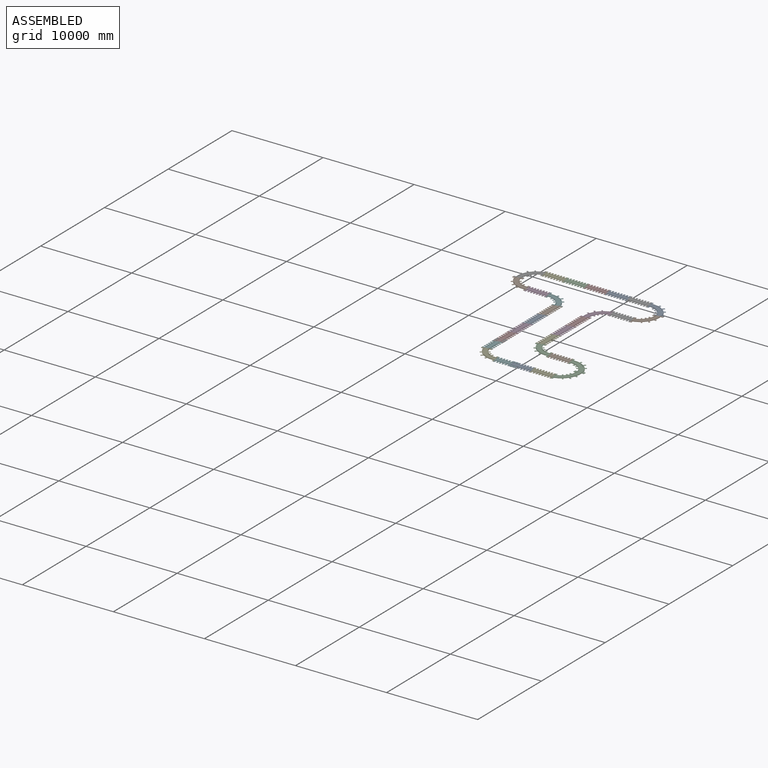
[diagram: assembled view]
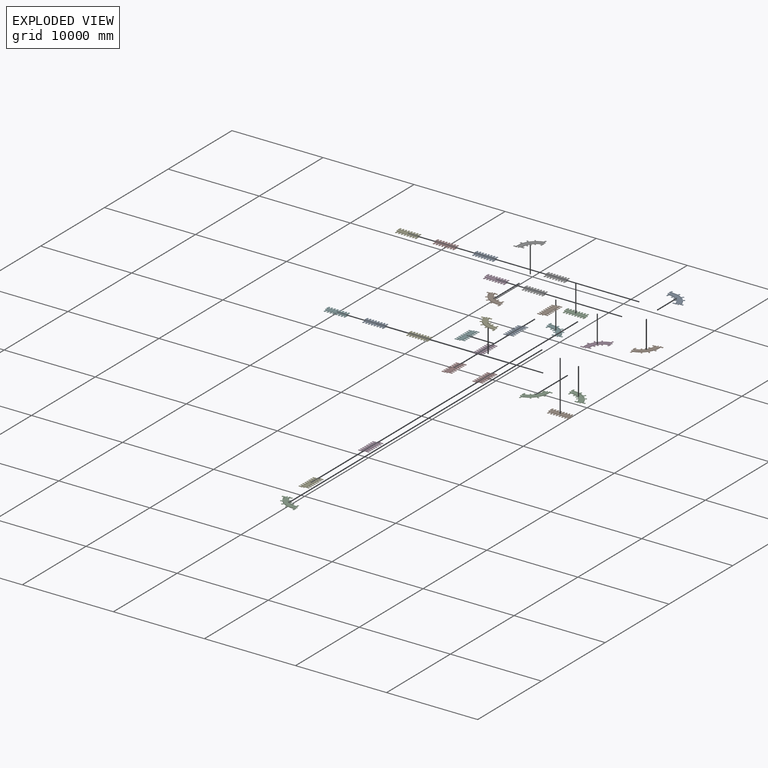
[diagram: exploded view]
GUIDED TOUR — MATED ASSEMBLY (Onshape document 573f48ffe4b0b9290a33c48c, AutoMate assembly 573f48ffe4b0b9290a33c48c_688db4f227d9a4fdee3f4b20_6b57aa259356919dd3994f17_default)

This assembly has 29 components, labeled P0..P28 below (a component is one placed occurrence of a part; the same part can appear more than once), held together by 26 mates. A mate is a constraint between two components; its type names the relative motion it leaves free:
  FASTENED — locks the two components together rigidly (no relative motion).
Axis/direction vectors are unit vectors and 'through' points are millimeter coordinates, both in the assembly's world frame.

MATES
  1. FASTENED "Fastened 2": P14 <-> P16, direction (1.000, 0.000, 0.000) through (-565.29, 798.56, -175.38) mm
  2. FASTENED "Fastened 21": P26 <-> P18, direction (0.000, 1.000, 0.000) through (2366.49, -14536.88, -175.38) mm
  3. FASTENED "Fastened 20": P7 <-> P11, direction (0.000, 1.000, 0.000) through (-7423.10, -11065.11, -175.38) mm
  4. FASTENED "Fastened 14": P17 <-> P6, direction (0.000, 1.000, 0.000) through (-13740.69, -1180.79, -175.38) mm
  5. FASTENED "Fastened 19": P11 <-> P8, direction (0.000, 1.000, 0.000) through (-7423.10, -8750.52, -175.38) mm
  6. FASTENED "Fastened 17": P25 <-> P5, direction (0.000, 1.000, 0.000) through (-7423.10, -4121.34, -175.38) mm
  7. FASTENED "Fastened 16": P5 <-> P3, direction (-1.000, 0.000, 0.000) through (-9292.44, -2673.21, -175.38) mm
  8. FASTENED "Fastened 25": P0 <-> P12, direction (1.000, 0.000, 0.000) through (-1286.22, -16560.52, -175.38) mm
  9. FASTENED "Fastened 7": P4 <-> P27, direction (0.000, 1.000, 0.000) through (-3951.09, -9281.74, -175.38) mm
  10. FASTENED "Fastened 5": P15 <-> P19, direction (0.000, 1.000, 0.000) through (-3951.09, -4652.56, -175.38) mm
  11. FASTENED "Fastened 11": P10 <-> P23, direction (1.000, 0.000, 0.000) through (-7509.07, 798.56, -175.38) mm
  12. FASTENED "Fastened 18": P8 <-> P25, direction (0.000, 1.000, 0.000) through (-7423.10, -6435.93, -175.38) mm
  13. FASTENED "Fastened 13": P6 <-> P20, direction (1.000, 0.000, 0.000) through (-12138.26, 798.56, -175.38) mm
  14. FASTENED "Fastened 1": P1 <-> P16, direction (0.000, 1.000, 0.000) through (1414.05, -803.87, -175.38) mm
  15. FASTENED "Fastened 15": P3 <-> P17, direction (-1.000, 0.000, 0.000) through (-11607.03, -2673.21, -175.38) mm
  16. FASTENED "Fastened 22": P2 <-> P4, direction (0.000, 1.000, 0.000) through (-3951.09, -11596.33, -175.38) mm
  17. FASTENED "Fastened 8": P18 <-> P9, direction (-1.000, 0.000, 0.000) through (342.84, -13198.76, -175.38) mm
  18. FASTENED "Fastened 4": P19 <-> P22, direction (1.000, 0.000, 0.000) through (-2348.66, -2673.21, -175.38) mm
  19. FASTENED "Fastened 3": P22 <-> P1, direction (1.000, 0.000, 0.000) through (-34.07, -2673.21, -175.38) mm
  20. FASTENED "Fastened 10": P23 <-> P24, direction (1.000, 0.000, 0.000) through (-5194.48, 798.56, -175.38) mm
  21. FASTENED "Fastened 12": P20 <-> P10, direction (1.000, 0.000, 0.000) through (-9823.66, 798.56, -175.38) mm
  22. FASTENED "Fastened 6": P27 <-> P15, direction (0.000, 1.000, 0.000) through (-3951.09, -6967.15, -175.38) mm
  23. FASTENED "Fastened 24": P9 <-> P2, direction (-1.000, 0.000, 0.000) through (-1971.75, -13198.76, -175.38) mm
  24. FASTENED "Fastened 23": P12 <-> P26, direction (1.000, 0.000, 0.000) through (1028.37, -16560.52, -175.38) mm
  25. FASTENED "Fastened 26": P13 <-> P28, direction (0.000, -1.000, 0.000) through (-7423.10, -15091.32, -175.38) mm
  26. FASTENED "Fastened 9": P24 <-> P14, direction (1.000, 0.000, 0.000) through (-2879.89, 798.56, -175.38) mm

ASSEMBLY ORDER
  1. P25 — the base component [order verified]
  2. P8 [order verified]
  3. P11 [order verified]
  4. P7 [order verified]
  5. P13 [order verified]
  6. P27 [order verified]
  7. P22 [order verified]
  8. P4 [order verified]
  9. P15 [order verified]
  10. P2 [order verified]
  11. P3 [order verified]
  12. P19 [order verified]
  13. P5 [order verified]
  14. P18 [order verified]
  15. P14 [order verified]
  16. P12 [order verified]
  17. P9 [order verified]
  18. P17 [order verified]
  19. P1 [order verified]
  20. P26 [order verified]
  21. P0 [order verified]
  22. P24 [order verified]
  23. P23 [order verified]
  24. P20 [order verified]
  25. P10 [order verified]
  26. P6 [order verified]
  27. P16 [order verified]
  28. P28 [order verified]
  29. P21 [order verified]
Order-tag legend:
  [order verified] — this step's position reverses a verified removal order: the component was checked to insert without passing through the ones already placed.

Of the 29 components, 29 carry the full construction recipe — the FeatureScript program that regenerates the part's solid from scratch; the rest are supplied as boundary geometry only.
Because this assembly has more than 12 components, the tour below covers the 12 most significant ones individually (every recipe-attached component first, then the largest by part volume), in assembly order; the remaining 17 are summarized together in a grouped section at the end.
Each toured component is shown spotlighted twice — in the assembled view, then in the exploded view, where a leader line traces a displaced component back to its assembled socket (saturated green if recipe-attached, orange if geometry-only; every other component desaturated gray) — followed by its recipe or geometry summary and the mates that hold it.
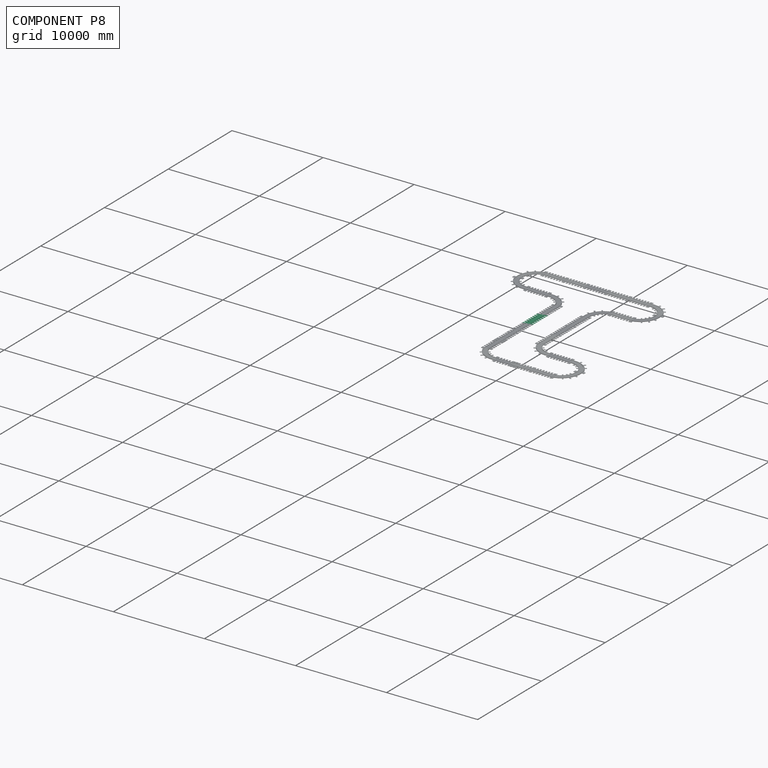
[diagram: component P8 — assembled]
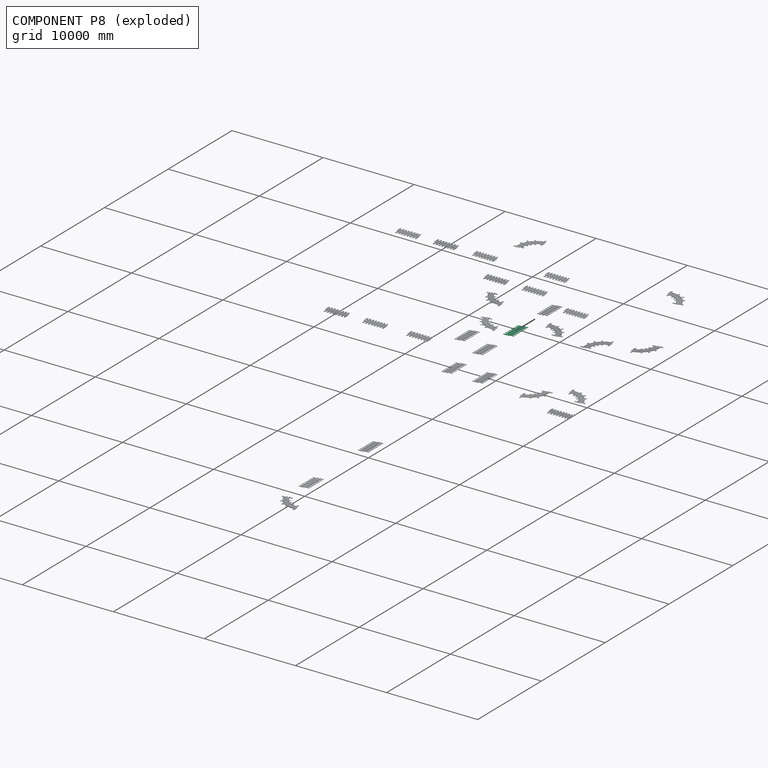
[diagram: component P8 — exploded]
COMPONENT P8 — same part as P0 (CADFS 00159531); its construction recipe is shown at P0.
Held by: FASTENED mate "Fastened 19" to P11; FASTENED mate "Fastened 18" to P25.
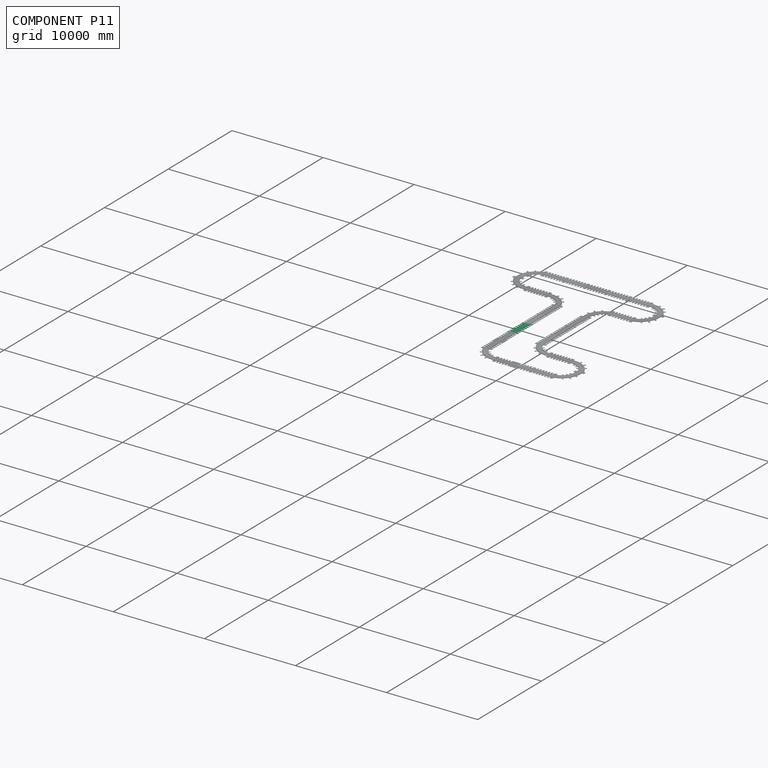
[diagram: component P11 — assembled]
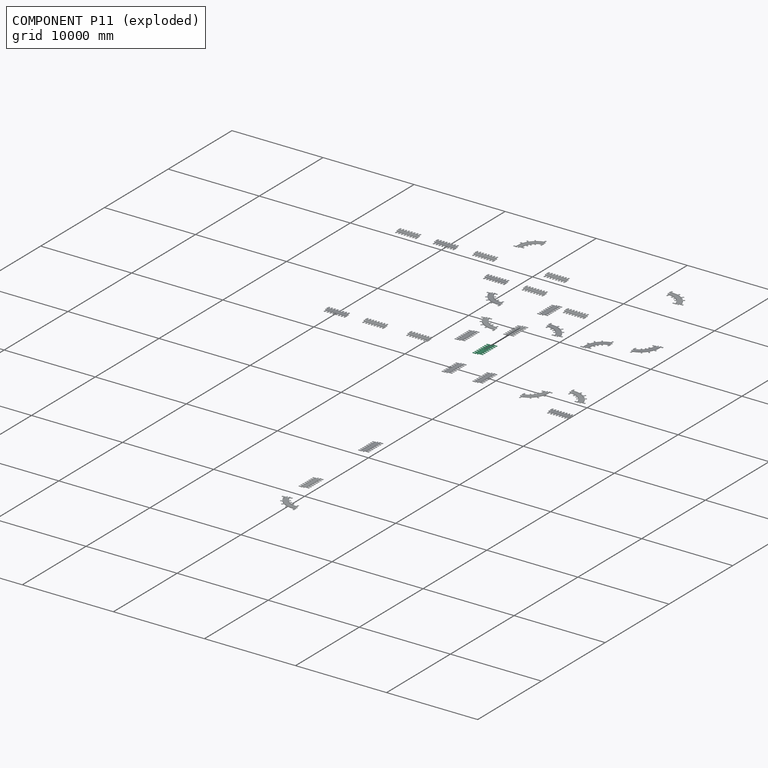
[diagram: component P11 — exploded]
COMPONENT P11 — same part as P0 (CADFS 00159531); its construction recipe is shown at P0.
Held by: FASTENED mate "Fastened 20" to P7; FASTENED mate "Fastened 19" to P8.
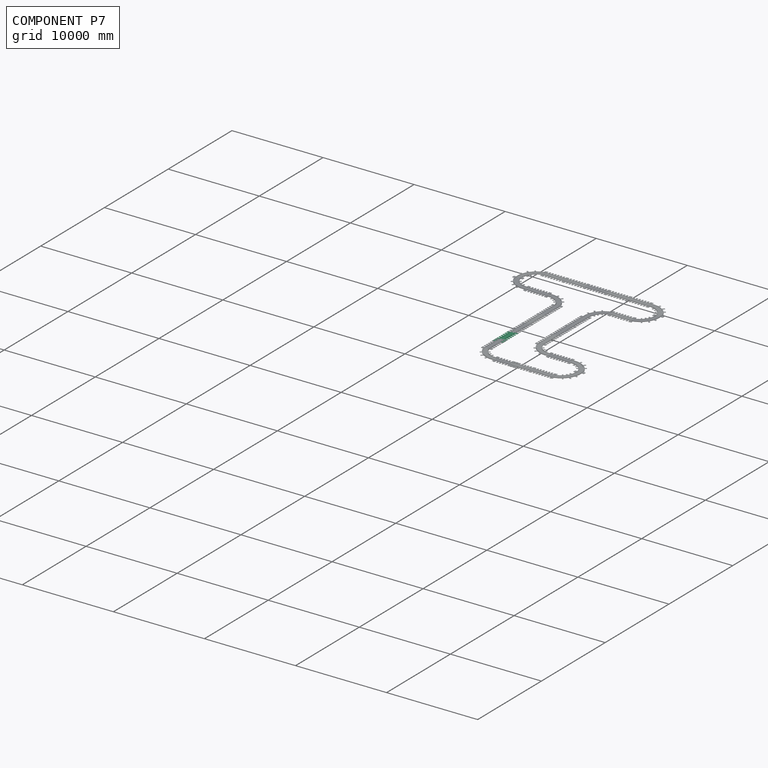
[diagram: component P7 — assembled]
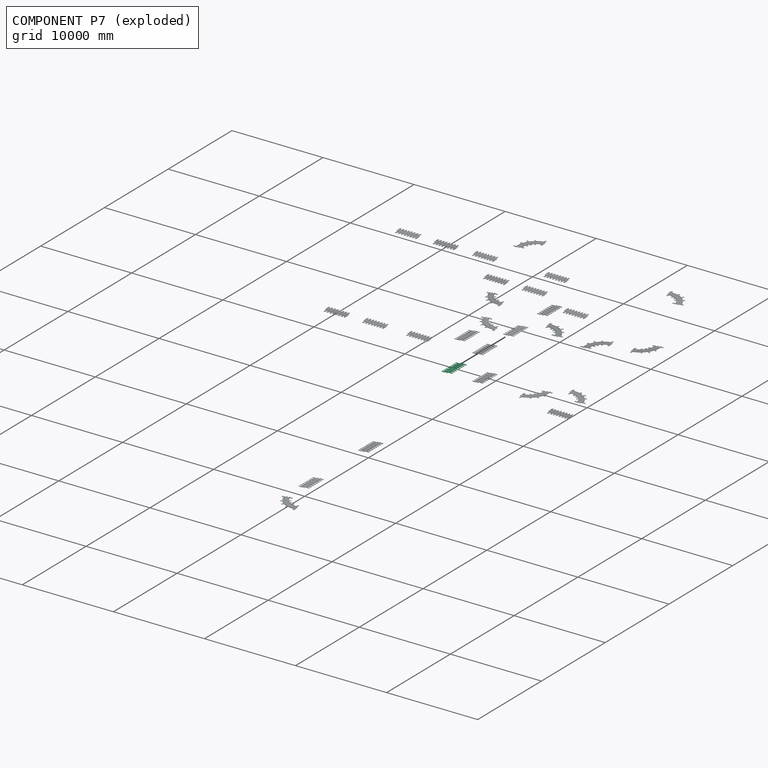
[diagram: component P7 — exploded]
COMPONENT P7 — same part as P0 (CADFS 00159531); its construction recipe is shown at P0.
Held by: FASTENED mate "Fastened 20" to P11.
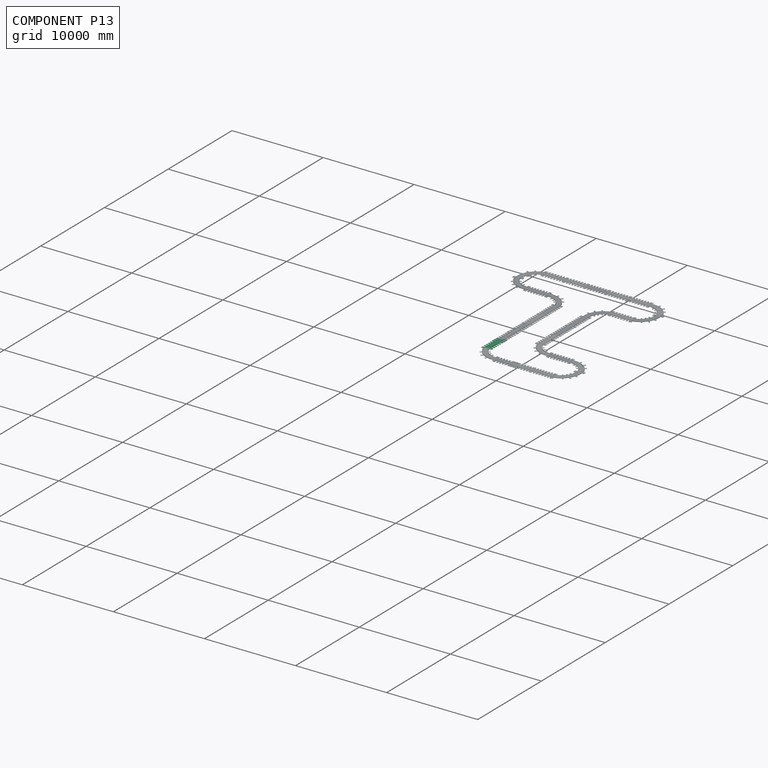
[diagram: component P13 — assembled]
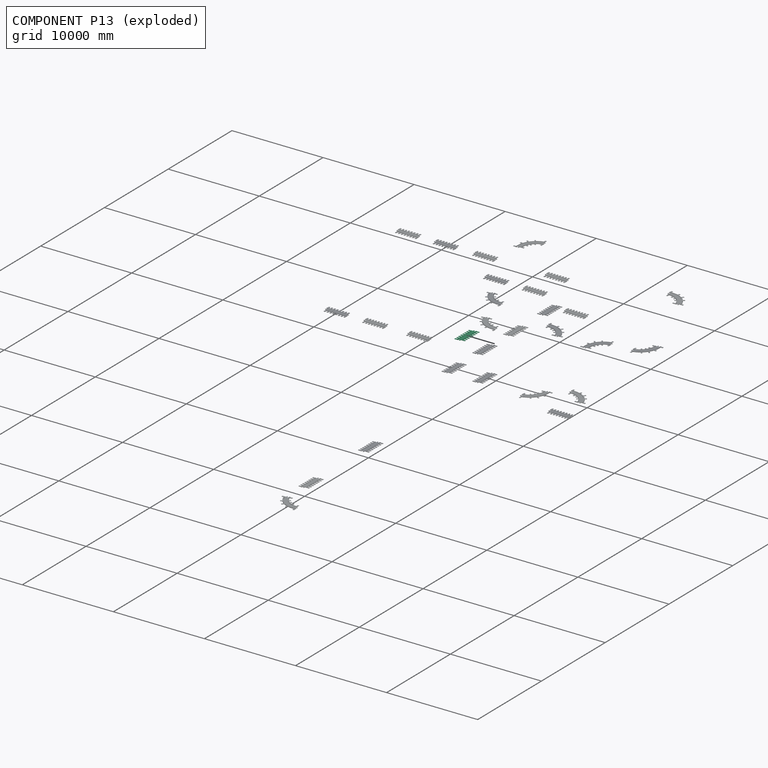
[diagram: component P13 — exploded]
COMPONENT P13 — same part as P0 (CADFS 00159531); its construction recipe is shown at P0.
Held by: FASTENED mate "Fastened 26" to P28.
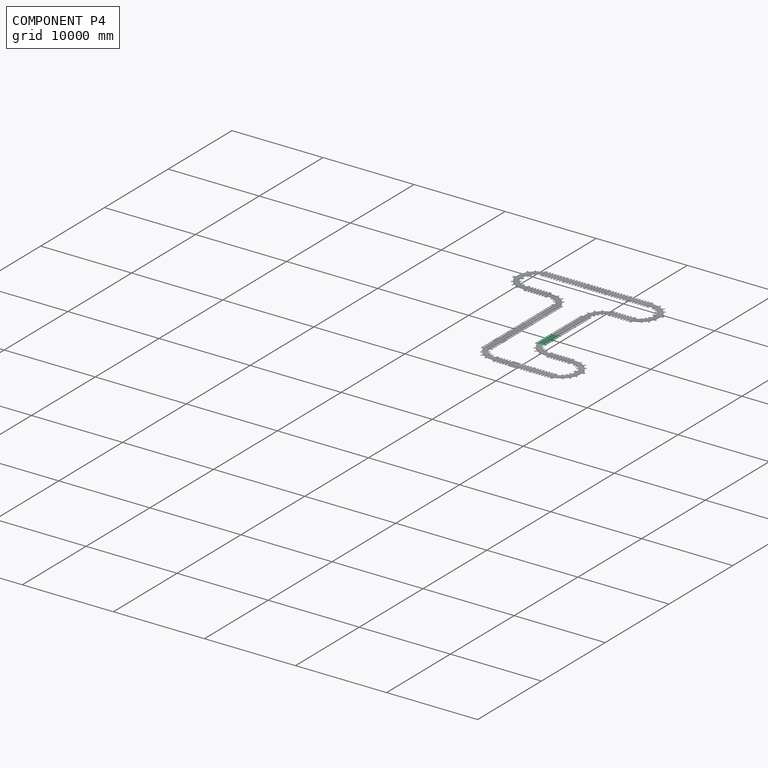
[diagram: component P4 — assembled]
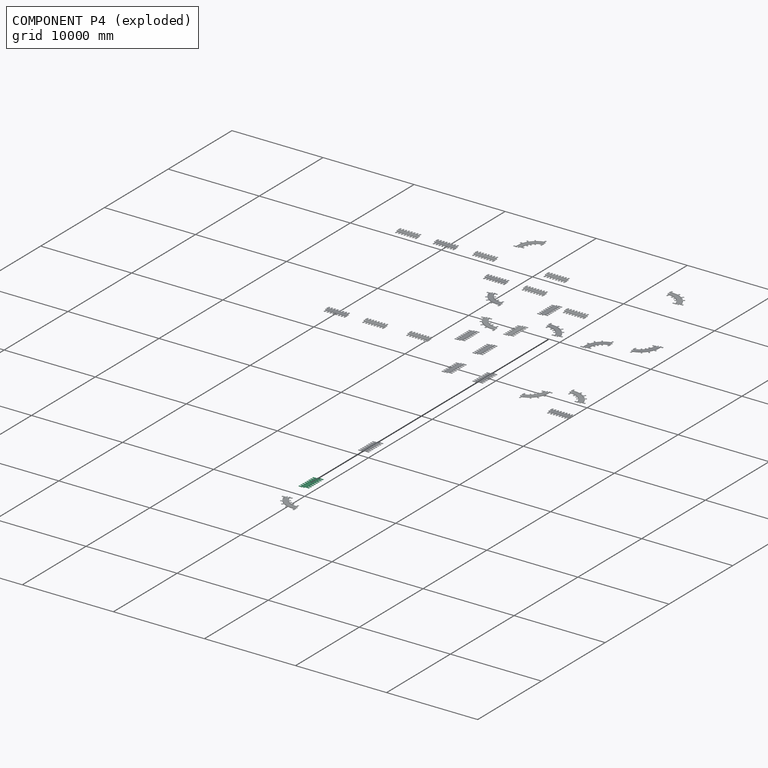
[diagram: component P4 — exploded]
COMPONENT P4 — same part as P0 (CADFS 00159531); its construction recipe is shown at P0.
Held by: FASTENED mate "Fastened 7" to P27; FASTENED mate "Fastened 22" to P2.
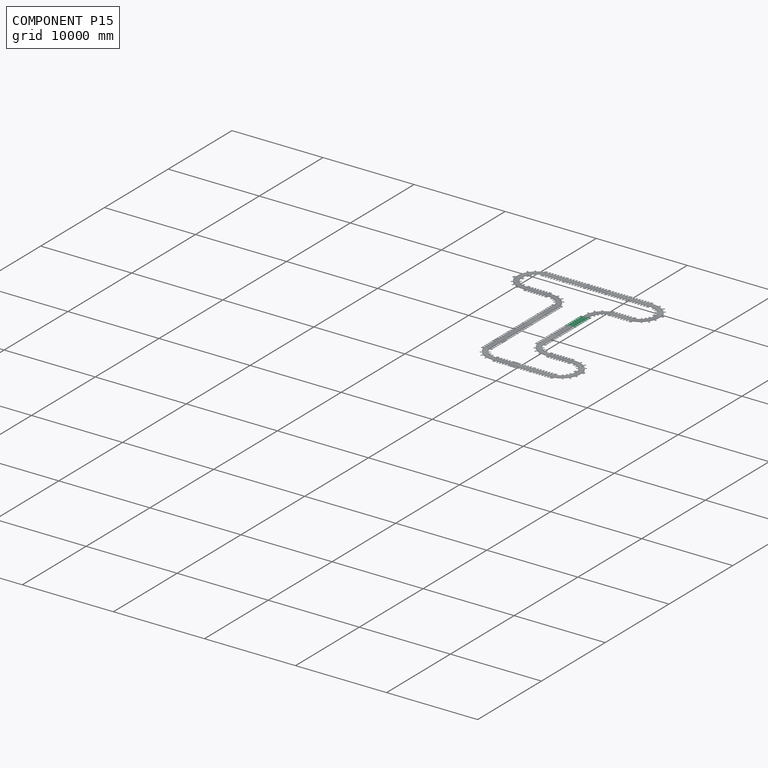
[diagram: component P15 — assembled]
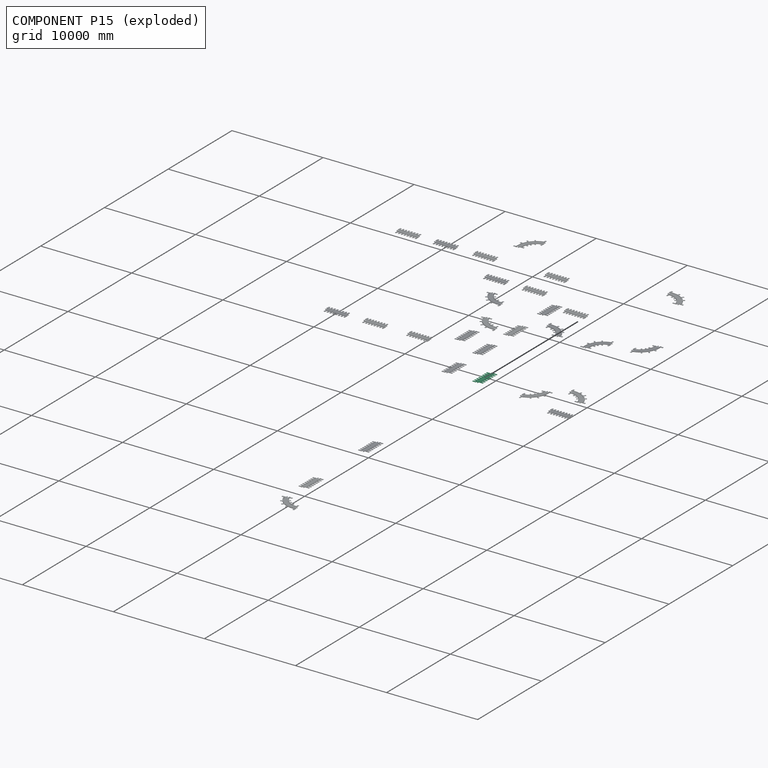
[diagram: component P15 — exploded]
COMPONENT P15 — same part as P0 (CADFS 00159531); its construction recipe is shown at P0.
Held by: FASTENED mate "Fastened 5" to P19; FASTENED mate "Fastened 6" to P27.
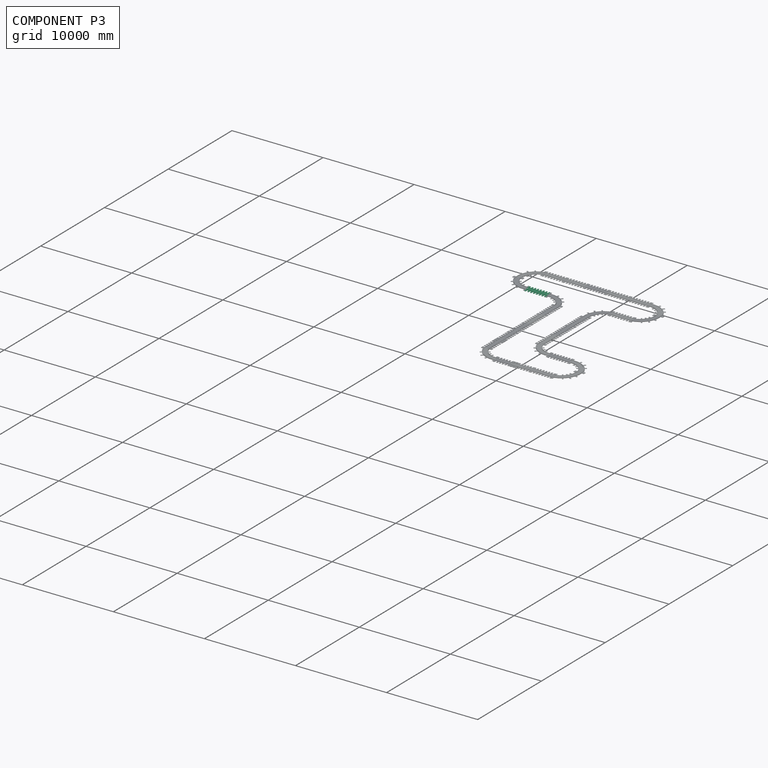
[diagram: component P3 — assembled]
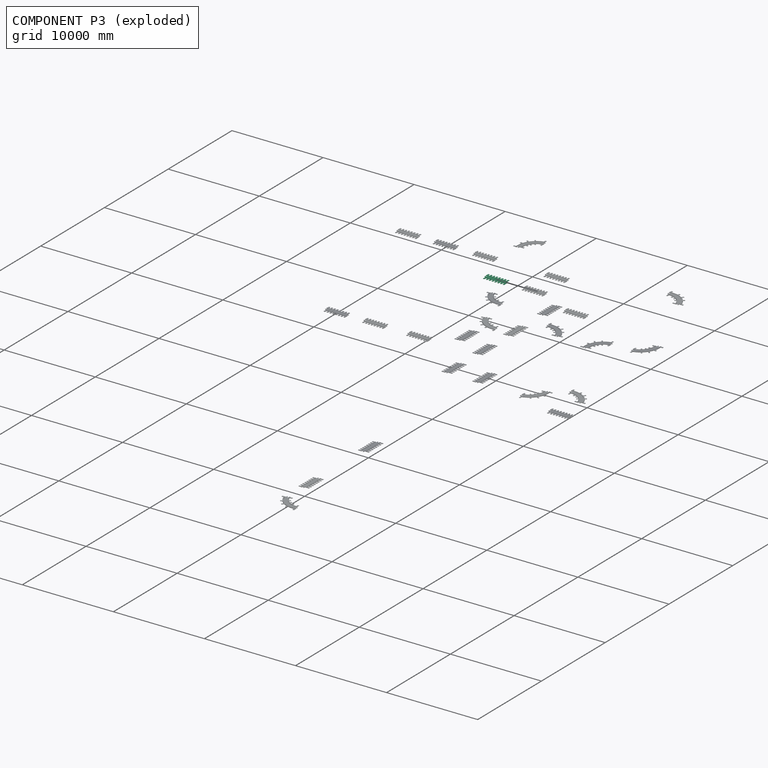
[diagram: component P3 — exploded]
COMPONENT P3 — same part as P0 (CADFS 00159531); its construction recipe is shown at P0.
Held by: FASTENED mate "Fastened 16" to P5; FASTENED mate "Fastened 15" to P17.
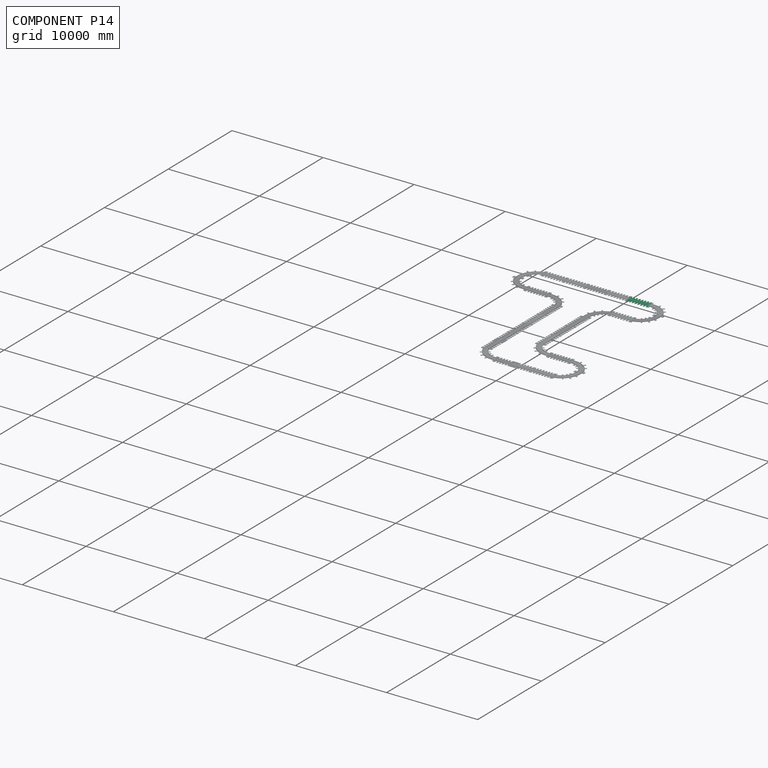
[diagram: component P14 — assembled]
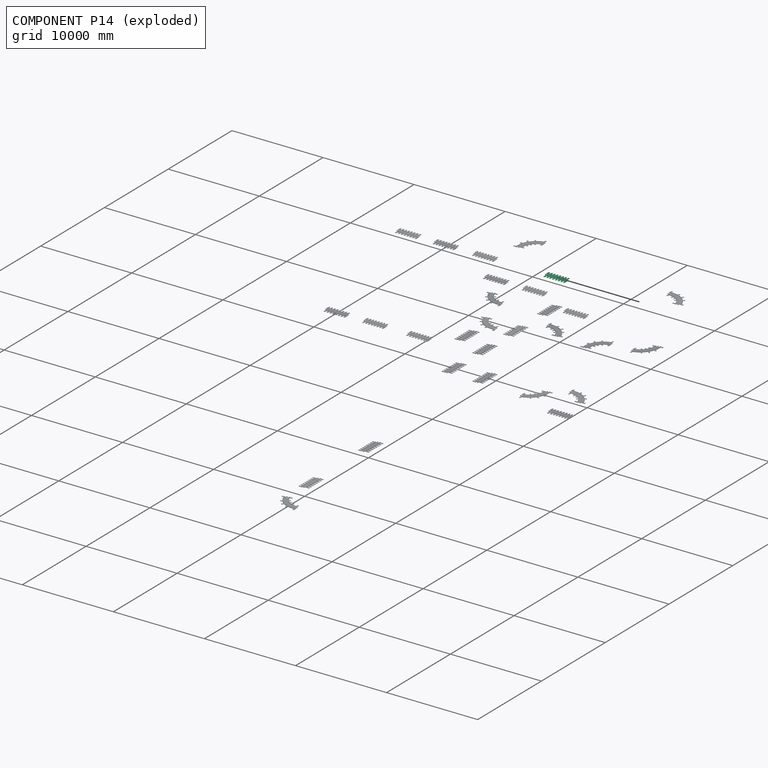
[diagram: component P14 — exploded]
COMPONENT P14 — same part as P0 (CADFS 00159531); its construction recipe is shown at P0.
Held by: FASTENED mate "Fastened 2" to P16; FASTENED mate "Fastened 9" to P24.
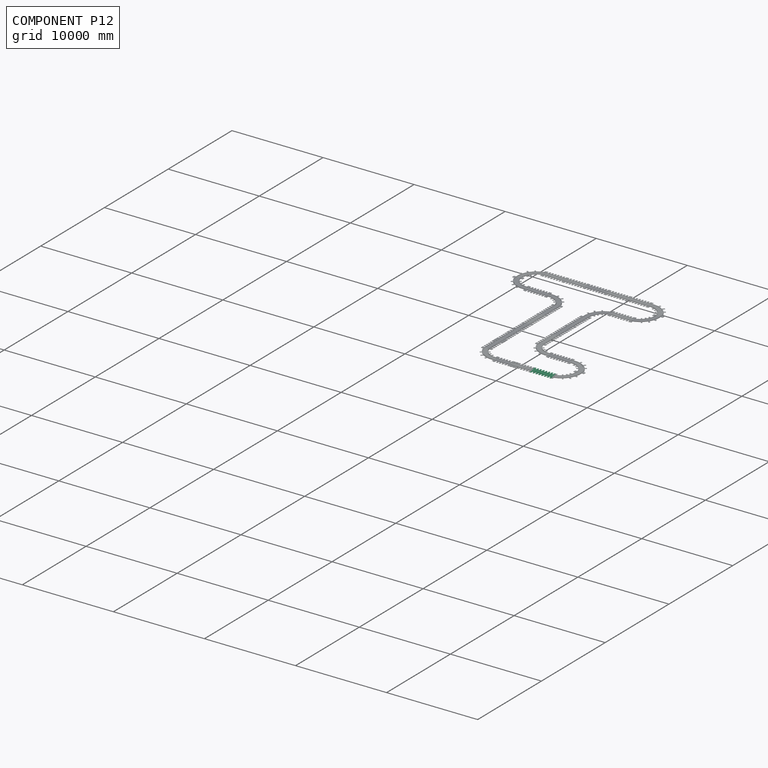
[diagram: component P12 — assembled]
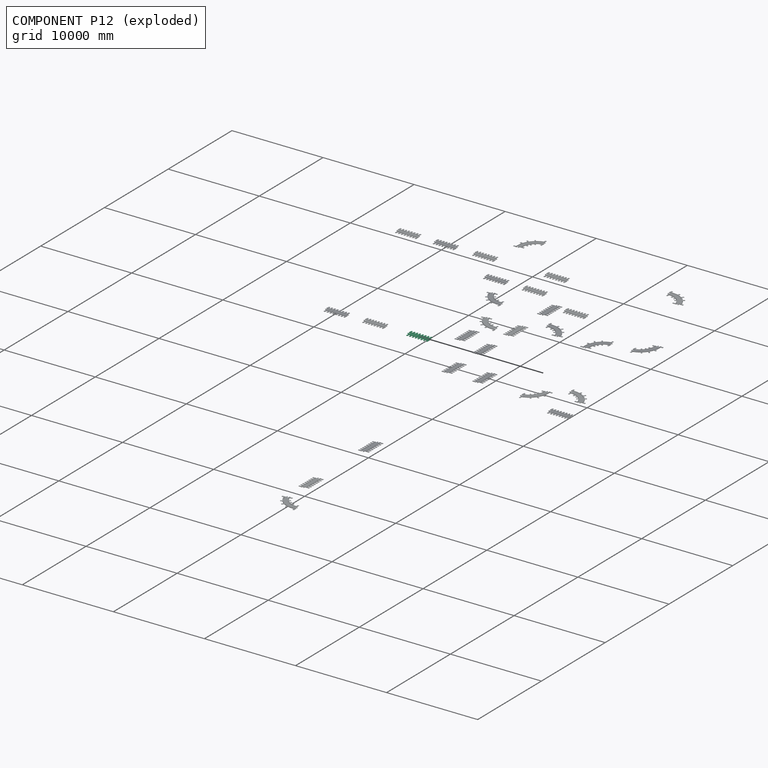
[diagram: component P12 — exploded]
COMPONENT P12 — same part as P0 (CADFS 00159531); its construction recipe is shown at P0.
Held by: FASTENED mate "Fastened 25" to P0; FASTENED mate "Fastened 23" to P26.
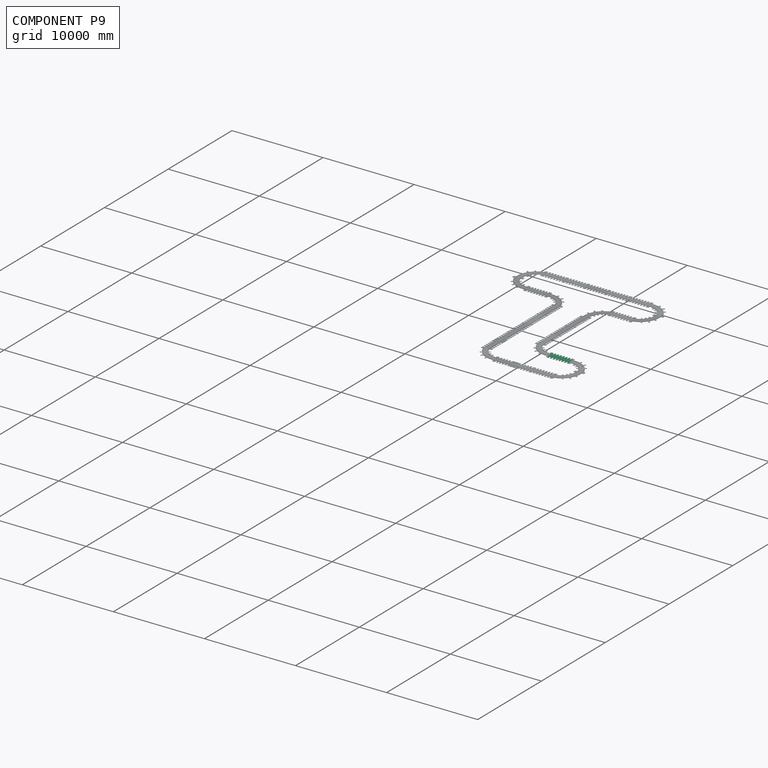
[diagram: component P9 — assembled]
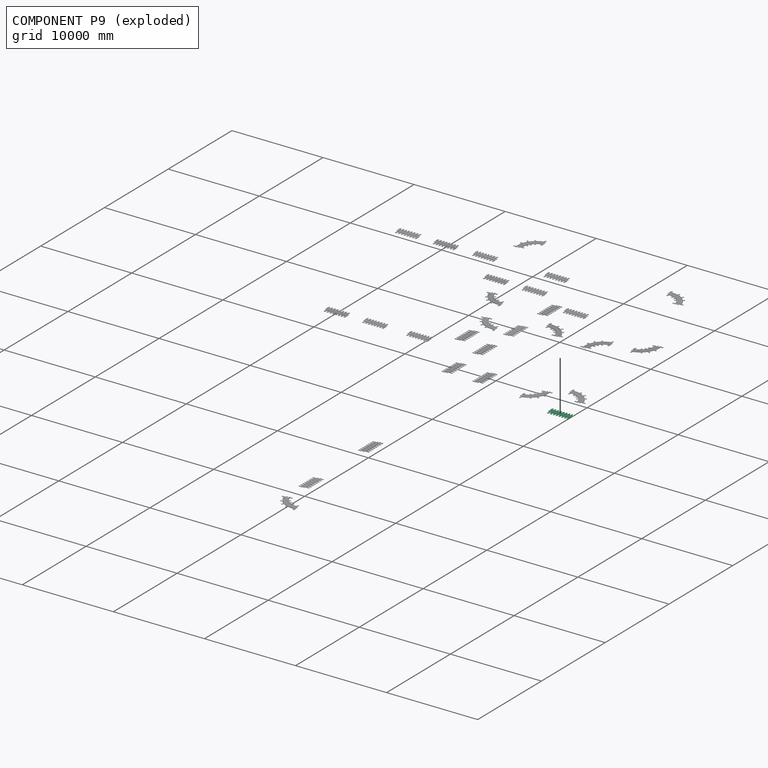
[diagram: component P9 — exploded]
COMPONENT P9 — same part as P0 (CADFS 00159531); its construction recipe is shown at P0.
Held by: FASTENED mate "Fastened 8" to P18; FASTENED mate "Fastened 24" to P2.
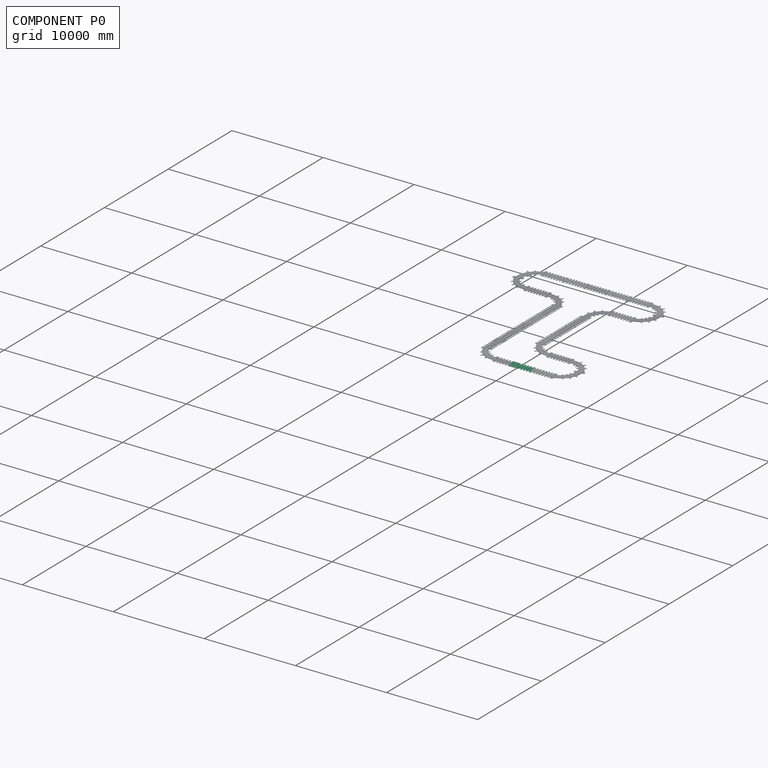
[diagram: component P0 — assembled]
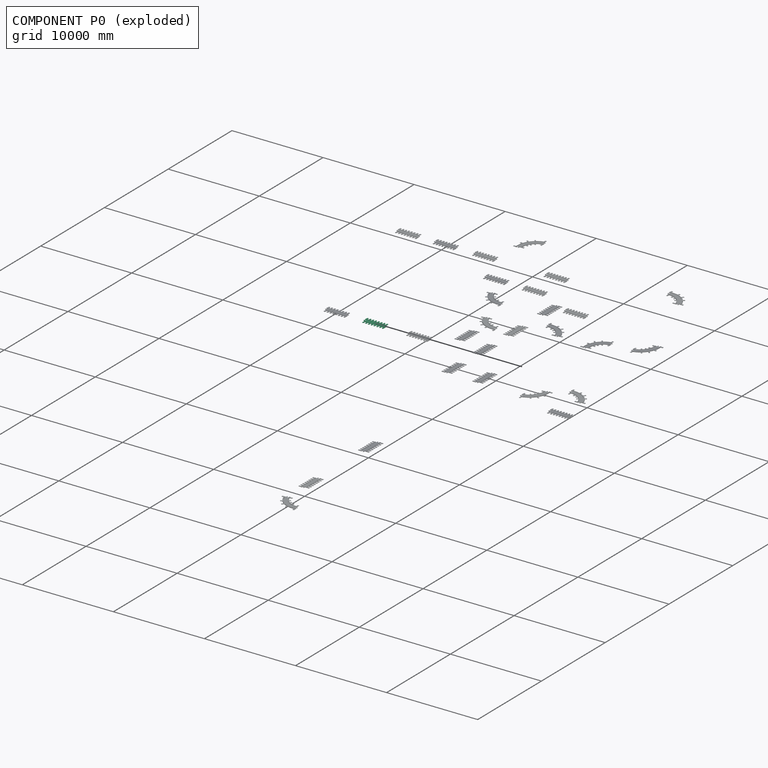
[diagram: component P0 — exploded]
COMPONENT P0 — recipe-attached (CADFS 00159531, mesh-verified: the recipe's output STEP matches this component's geometry to below the mesh-comparison resolution (tessellation chordal tolerance ~4.02 mm)).
Held by: FASTENED mate "Fastened 25" to P12.
Construction recipe (FeatureScript — the CAD program that rebuilds this solid; sketch coordinates are in the units given by the * unit suffixes, e.g. mm):

FeatureScript 1511;
import(path : "onshape/std/geometry.fs", version : "1511.0");
import(path : "onshape/std/common.fs", version : "1511.0");
const mm = millimeter;
const VERTEX = EntityType.VERTEX;
const EDGE = EntityType.EDGE;
const FACE = EntityType.FACE;
const BODY = EntityType.BODY;
function v(x, y){return vector(x, y);}
function OD(order){return orderDisambiguation(order);}
function OSD(set){return originalSetDisambiguation(set);}
function TD(topology){return topologyDisambiguation(topology);}
function TDD(query){return trueDependencyDisambiguation(query);}
function sQuery(a, b, c) {return sketchEntityQuery(a, b, c);}

annotation { "Feature Type Name" : "Feature", "Feature Type Description" : "" }
export const myFeature = defineFeature(function(context is Context, id is Id, definition is map)
    precondition{}
    {
        {
            var Q0;
            Q0=qCreatedBy(makeId("Top.planeOp"),FACE);
            var sketch = newSketch(context, id + "F0", { "sketchPlane" : qUnion([Q0])});
            skLineSegment(sketch, "E0", {"start": v(0, 0) * mm, "end": v(141.6, 0) * mm});
            skLineSegment(sketch, "E1", {"start": v(154.3, -12.7) * mm, "end": v(154.3, -97.3) * mm});
            skLineSegment(sketch, "E2", {"start": v(141.6, -110) * mm, "end": v(12.7, -110) * mm});
            skLineSegment(sketch, "E3", {"start": v(0, -122.7) * mm, "end": v(0, -207.32) * mm});
            skLineSegment(sketch, "E4", {"start": v(12.7, -220.02) * mm, "end": v(154.3, -220.02) * mm});
            skLineSegment(sketch, "E5", {"start": v(154.3, -220.02) * mm, "end": v(154.3, -647.87) * mm});
            skLineSegment(sketch, "E6", {"start": v(154.3, -647.87) * mm, "end": v(0, -647.87) * mm});
            skLineSegment(sketch, "E7", {"start": v(0, -647.87) * mm, "end": v(0, -389.82) * mm});
            skLineSegment(sketch, "E8", {"start": v(0, -389.82) * mm, "end": v(-154.3, -389.82) * mm});
            skLineSegment(sketch, "E9", {"start": v(-154.3, -389.82) * mm, "end": v(-154.3, -647.87) * mm});
            skLineSegment(sketch, "E10", {"start": v(-154.3, -647.87) * mm, "end": v(-308.61, -647.87) * mm});
            skLineSegment(sketch, "E11", {"start": v(-308.61, -647.87) * mm, "end": v(-308.61, -389.82) * mm});
            skLineSegment(sketch, "E12", {"start": v(-308.61, -389.82) * mm, "end": v(-462.92, -389.82) * mm});
            skLineSegment(sketch, "E13", {"start": v(-462.92, -389.82) * mm, "end": v(-462.92, -647.87) * mm});
            skLineSegment(sketch, "E14", {"start": v(-462.92, -647.87) * mm, "end": v(-617.22, -647.87) * mm});
            skLineSegment(sketch, "E15", {"start": v(-617.22, -647.87) * mm, "end": v(-617.22, -389.82) * mm});
            skLineSegment(sketch, "E16", {"start": v(-617.22, -389.82) * mm, "end": v(-771.53, -389.82) * mm});
            skLineSegment(sketch, "E17", {"start": v(-771.53, -389.82) * mm, "end": v(-771.53, -647.87) * mm});
            skLineSegment(sketch, "E18", {"start": v(-771.53, -647.87) * mm, "end": v(-925.83, -647.87) * mm});
            skLineSegment(sketch, "E19", {"start": v(-925.83, -647.87) * mm, "end": v(-925.83, -389.82) * mm});
            skPoint(sketch, "E20.visualSharp", {"position": v(154.3, 0) * mm});
            skArc(sketch, "E20.filletArc", {"start": v(154.3, -12.7) * mm, "mid": v(150.59, -3.72) * mm, "end": v(141.6, 0) * mm});
            skPoint(sketch, "E21.visualSharp", {"position": v(154.3, -110) * mm});
            skArc(sketch, "E21.filletArc", {"start": v(141.6, -110) * mm, "mid": v(150.59, -106.29) * mm, "end": v(154.3, -97.3) * mm});
            skPoint(sketch, "E22.visualSharp", {"position": v(0, -220.02) * mm});
            skArc(sketch, "E22.filletArc", {"start": v(0, -207.32) * mm, "mid": v(3.72, -216.3) * mm, "end": v(12.7, -220.02) * mm});
            skPoint(sketch, "E23.visualSharp", {"position": v(0, -110) * mm});
            skArc(sketch, "E23.filletArc", {"start": v(12.7, -110) * mm, "mid": v(3.72, -113.73) * mm, "end": v(0, -122.7) * mm});
            skLineSegment(sketch, "E24", {"start": v(-925.83, -389.82) * mm, "end": v(-1080.14, -389.82) * mm});
            skLineSegment(sketch, "E25", {"start": v(-1080.14, -389.82) * mm, "end": v(-1080.14, -647.87) * mm});
            skLineSegment(sketch, "E26", {"start": v(-1080.14, -647.87) * mm, "end": v(-1234.44, -647.87) * mm});
            skLineSegment(sketch, "E27", {"start": v(-1234.44, -647.87) * mm, "end": v(-1234.44, -389.82) * mm});
            skLineSegment(sketch, "E28", {"start": v(-1234.44, -389.82) * mm, "end": v(-1388.75, -389.82) * mm});
            skLineSegment(sketch, "E29", {"start": v(-1388.75, -389.82) * mm, "end": v(-1388.75, -647.87) * mm});
            skLineSegment(sketch, "E30", {"start": v(-1388.75, -647.87) * mm, "end": v(-1543.05, -647.87) * mm});
            skLineSegment(sketch, "E31", {"start": v(-1543.05, -647.87) * mm, "end": v(-1543.05, -389.82) * mm});
            skLineSegment(sketch, "E32", {"start": v(-1543.05, -389.82) * mm, "end": v(-1697.36, -389.82) * mm});
            skLineSegment(sketch, "E33", {"start": v(-1697.36, -389.82) * mm, "end": v(-1697.36, -647.87) * mm});
            skLineSegment(sketch, "E34", {"start": v(-1697.36, -647.87) * mm, "end": v(-1851.67, -647.87) * mm});
            skLineSegment(sketch, "E35", {"start": v(-1851.67, -647.87) * mm, "end": v(-1851.67, -389.82) * mm});
            skLineSegment(sketch, "E36", {"start": v(-1851.67, -389.82) * mm, "end": v(-2005.97, -389.82) * mm});
            skLineSegment(sketch, "E37", {"start": v(-2005.97, -389.82) * mm, "end": v(-2005.97, -647.87) * mm});
            skLineSegment(sketch, "E38", {"start": v(-2005.97, -647.87) * mm, "end": v(-2160.29, -647.87) * mm});
            skLineSegment(sketch, "E39", {"start": v(-2160.29, -647.87) * mm, "end": v(-2160.29, -220.02) * mm});
            skLineSegment(sketch, "E40", {"start": v(-2160.29, -220.02) * mm, "end": v(-2301.9, -220.02) * mm});
            skLineSegment(sketch, "E41", {"start": v(-2314.6, -207.32) * mm, "end": v(-2314.6, -122.7) * mm});
            skLineSegment(sketch, "E42", {"start": v(-2301.9, -110) * mm, "end": v(-2172.99, -110) * mm});
            skLineSegment(sketch, "E43", {"start": v(-2160.29, -97.3) * mm, "end": v(-2160.29, -12.7) * mm});
            skLineSegment(sketch, "E44", {"start": v(-2172.99, 0) * mm, "end": v(-2314.6, 0) * mm});
            skLineSegment(sketch, "E45", {"start": v(-2314.6, 0) * mm, "end": v(-2314.6, 399.88) * mm});
            skPoint(sketch, "E46.visualSharp", {"position": v(-2314.6, -110) * mm});
            skArc(sketch, "E46.filletArc", {"start": v(-2301.9, -110) * mm, "mid": v(-2310.87, -113.73) * mm, "end": v(-2314.6, -122.7) * mm});
            skPoint(sketch, "E47.visualSharp", {"position": v(-2314.6, -220.02) * mm});
            skArc(sketch, "E47.filletArc", {"start": v(-2314.6, -207.32) * mm, "mid": v(-2310.87, -216.3) * mm, "end": v(-2301.9, -220.02) * mm});
            skPoint(sketch, "E48.visualSharp", {"position": v(-2160.29, -110) * mm});
            skArc(sketch, "E48.filletArc", {"start": v(-2172.99, -110) * mm, "mid": v(-2164, -106.29) * mm, "end": v(-2160.29, -97.3) * mm});
            skPoint(sketch, "E49.visualSharp", {"position": v(-2160.29, 0) * mm});
            skArc(sketch, "E49.filletArc", {"start": v(-2160.29, -12.7) * mm, "mid": v(-2164, -3.72) * mm, "end": v(-2172.99, 0) * mm});
            skLineSegment(sketch, "E50", {"start": v(-2314.6, 399.88) * mm, "end": v(-2160.29, 399.88) * mm});
            skLineSegment(sketch, "E51", {"start": v(-2160.29, 399.88) * mm, "end": v(-2160.29, 172.14) * mm});
            skLineSegment(sketch, "E52", {"start": v(-2160.29, 172.14) * mm, "end": v(-2005.98, 172.14) * mm});
            skLineSegment(sketch, "E53", {"start": v(-2005.98, 172.14) * mm, "end": v(-2005.98, 399.88) * mm});
            skLineSegment(sketch, "E54", {"start": v(-2005.98, 399.88) * mm, "end": v(-1851.68, 399.88) * mm});
            skLineSegment(sketch, "E55", {"start": v(-1851.68, 399.88) * mm, "end": v(-1851.68, 172.14) * mm});
            skLineSegment(sketch, "E56", {"start": v(-1851.68, 172.14) * mm, "end": v(-1697.37, 172.14) * mm});
            skLineSegment(sketch, "E57", {"start": v(-1697.37, 172.14) * mm, "end": v(-1697.37, 399.88) * mm});
            skLineSegment(sketch, "E58", {"start": v(-1697.37, 399.88) * mm, "end": v(-1543.07, 399.88) * mm});
            skLineSegment(sketch, "E59", {"start": v(-1543.07, 399.88) * mm, "end": v(-1543.07, 172.14) * mm});
            skLineSegment(sketch, "E60", {"start": v(-1543.07, 172.14) * mm, "end": v(-1388.76, 172.14) * mm});
            skLineSegment(sketch, "E61", {"start": v(-1388.76, 172.14) * mm, "end": v(-1388.76, 400.96) * mm});
            skLineSegment(sketch, "E62", {"start": v(-1388.76, 400.96) * mm, "end": v(-1234.46, 400.96) * mm});
            skLineSegment(sketch, "E63", {"start": v(-1234.46, 400.96) * mm, "end": v(-1234.46, 172.14) * mm});
            skLineSegment(sketch, "E64", {"start": v(-1234.46, 172.14) * mm, "end": v(-1080.15, 172.14) * mm});
            skLineSegment(sketch, "E65", {"start": v(-1080.15, 172.14) * mm, "end": v(-1080.15, 400.96) * mm});
            skLineSegment(sketch, "E66", {"start": v(-1080.15, 400.96) * mm, "end": v(-925.85, 400.96) * mm});
            skLineSegment(sketch, "E67", {"start": v(-925.85, 400.96) * mm, "end": v(-925.85, 172.14) * mm});
            skLineSegment(sketch, "E68", {"start": v(-925.85, 172.14) * mm, "end": v(-771.54, 172.14) * mm});
            skLineSegment(sketch, "E69", {"start": v(-771.54, 172.14) * mm, "end": v(-771.54, 400.96) * mm});
            skLineSegment(sketch, "E70", {"start": v(-771.54, 400.96) * mm, "end": v(-617.24, 400.96) * mm});
            skLineSegment(sketch, "E71", {"start": v(-617.24, 400.96) * mm, "end": v(-617.24, 172.14) * mm});
            skLineSegment(sketch, "E72", {"start": v(-617.24, 172.14) * mm, "end": v(-462.93, 172.14) * mm});
            skLineSegment(sketch, "E73", {"start": v(-462.93, 172.14) * mm, "end": v(-462.93, 400.96) * mm});
            skLineSegment(sketch, "E74", {"start": v(-462.93, 400.96) * mm, "end": v(-308.63, 400.96) * mm});
            skLineSegment(sketch, "E75", {"start": v(-308.63, 400.96) * mm, "end": v(-308.63, 172.14) * mm});
            skLineSegment(sketch, "E76", {"start": v(-308.63, 172.14) * mm, "end": v(-154.32, 172.14) * mm});
            skLineSegment(sketch, "E77", {"start": v(-154.32, 172.14) * mm, "end": v(-154.32, 400.96) * mm});
            skLineSegment(sketch, "E78", {"start": v(-154.32, 400.96) * mm, "end": v(-0.02, 400.96) * mm});
            skLineSegment(sketch, "E79", {"start": v(-0.02, 400.96) * mm, "end": v(-0.02, 172.14) * mm});
            skLineSegment(sketch, "E80", {"start": v(-0.02, 172.14) * mm, "end": v(0, 0) * mm});
            skSolve(sketch);
        }
        {
            var Q0;
            Q0=makeQuery(id+"F0.imprint","IMPRINT",FACE,{"disambiguationData":[TD([[makeQuery(id+"F0.imprint","IMPRINT",EDGE,{"derivedFrom":sQuery(id+"F0.wireOp",EDGE,"E0")}),-1.0]])]});
            var sketch = newSketch(context, id + "F1", { "sketchPlane" : qUnion([Q0])});
            skLineSegment(sketch, "E81", {"start": v(-2314.86, 138.26) * mm, "end": v(0, 138.26) * mm});
            skLineSegment(sketch, "E82.0", {"start": v(-2314.86, 81.11) * mm, "end": v(0, 81.11) * mm});
            skLineSegment(sketch, "E83", {"start": v(-2160.59, -353.29) * mm, "end": v(154.12, -353.29) * mm});
            skLineSegment(sketch, "E84.0", {"start": v(-2160.59, -296.14) * mm, "end": v(154.12, -296.14) * mm});
            skLineSegment(sketch, "E85", {"start": v(-2314.86, 138.26) * mm, "end": v(-2314.86, 81.11) * mm});
            skLineSegment(sketch, "E86", {"start": v(-2160.59, -296.14) * mm, "end": v(-2160.59, -353.29) * mm});
            skLineSegment(sketch, "E87", {"start": v(154.12, -296.14) * mm, "end": v(154.12, -353.29) * mm});
            skLineSegment(sketch, "E88", {"start": v(0, 138.26) * mm, "end": v(0, 81.11) * mm});
            skSolve(sketch);
        }
        {
            var Q0;
            Q0=qSketchRegion(id+"F0",true);
            extrude(context, id + "F2", {"entities" : qUnion([Q0]), "depth" : 31.75 * mm});
        }
        {
            var Q0;
            Q0=qSketchRegion(id+"F1",true);
            extrude(context, id + "F3", {"entities" : qUnion([Q0]), "operationType" : NewBodyOperationType.ADD, "depth" : 50.8 * mm});
        }
    });
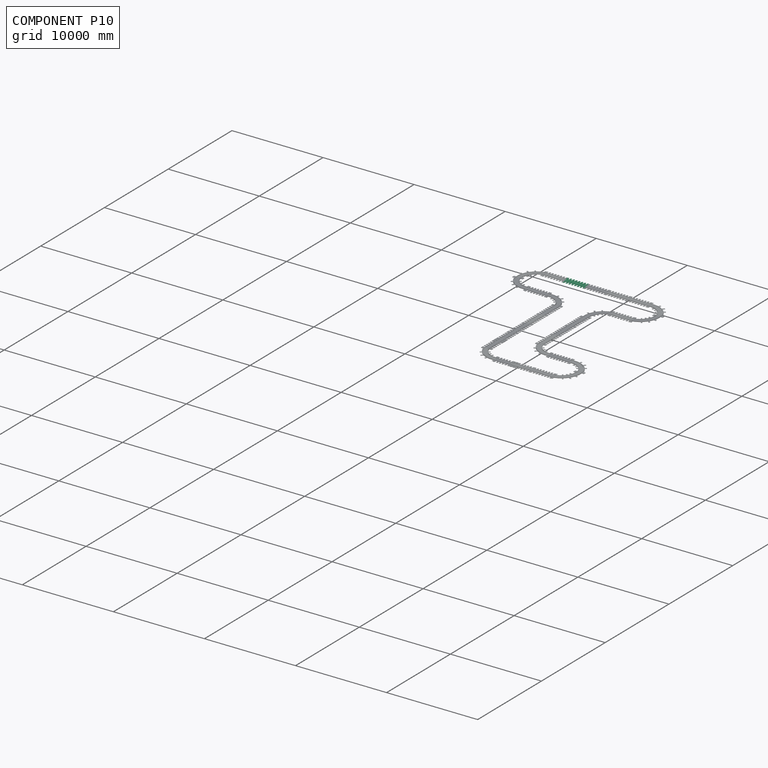
[diagram: component P10 — assembled]
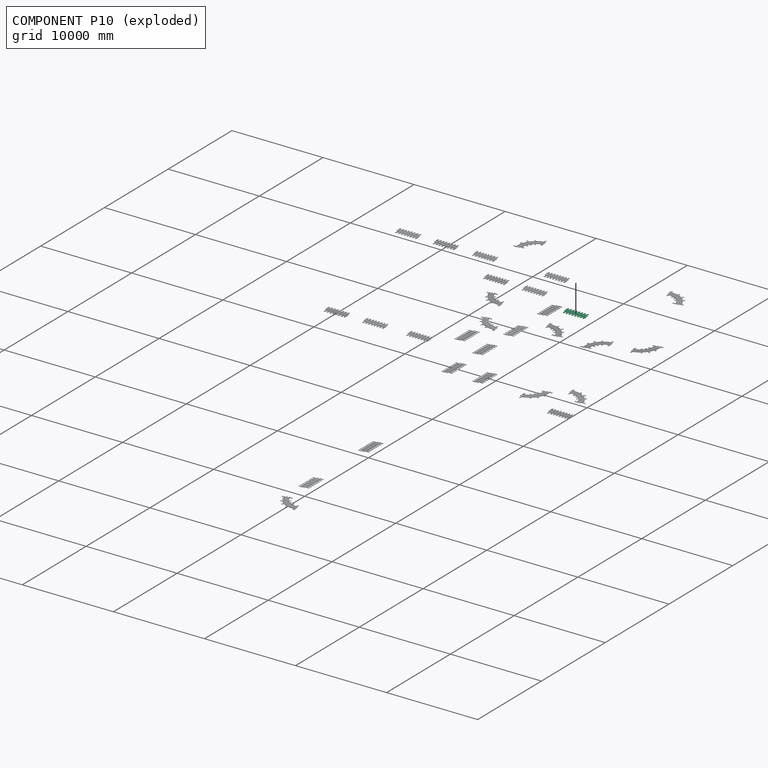
[diagram: component P10 — exploded]
COMPONENT P10 — same part as P0 (CADFS 00159531); its construction recipe is shown at P0.
Held by: FASTENED mate "Fastened 11" to P23; FASTENED mate "Fastened 12" to P20.
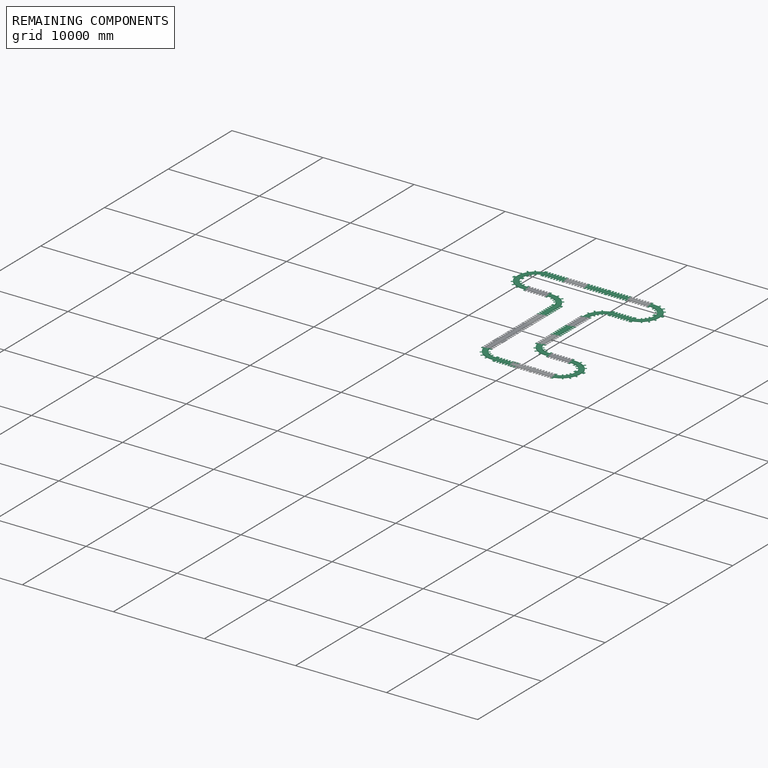
[diagram: remaining components — assembled]
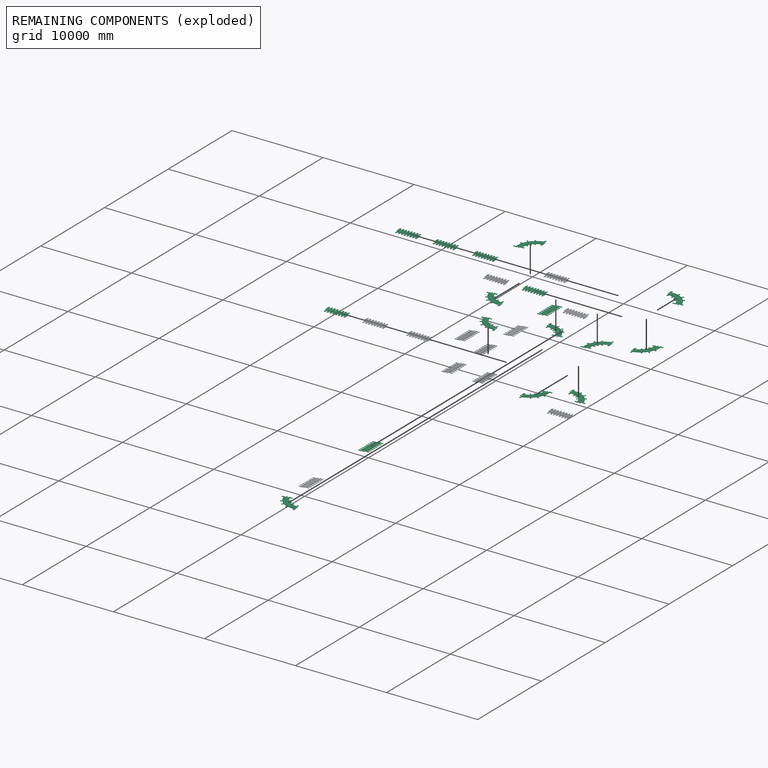
[diagram: remaining components — exploded]
REMAINING COMPONENTS (grouped) — the 17 components below fall outside the per-component tour by the significance rule stated above; both spotlight views highlight the whole group.
  P25: bounding box 2469.2 x 1048.8 x 50.8 mm, volume 65405073 mm^3. Recipe-attached (CADFS 00159531; recipe not printed under the significance rule). Held by: FASTENED mate "Fastened 17" to P5; FASTENED mate "Fastened 18" to P8.
  P27: bounding box 2469.2 x 1048.8 x 50.8 mm, volume 65405073 mm^3. Recipe-attached (CADFS 00159531; recipe not printed under the significance rule). Held by: FASTENED mate "Fastened 7" to P4; FASTENED mate "Fastened 6" to P15.
  P22: bounding box 2469.2 x 1048.8 x 50.8 mm, volume 65405073 mm^3. Recipe-attached (CADFS 00159531; recipe not printed under the significance rule). Held by: FASTENED mate "Fastened 4" to P19; FASTENED mate "Fastened 3" to P1.
  P2: bounding box 2581.7 x 2050.4 x 50.8 mm, volume 57263386 mm^3. Recipe-attached (CADFS 00160971; recipe not printed under the significance rule). Held by: FASTENED mate "Fastened 22" to P4; FASTENED mate "Fastened 24" to P9.
  P19: bounding box 2581.7 x 2050.4 x 50.8 mm, volume 57263386 mm^3. Recipe-attached (CADFS 00160971; recipe not printed under the significance rule). Held by: FASTENED mate "Fastened 5" to P15; FASTENED mate "Fastened 4" to P22.
  P5: bounding box 2581.7 x 2050.4 x 50.8 mm, volume 57263386 mm^3. Recipe-attached (CADFS 00160971; recipe not printed under the significance rule). Held by: FASTENED mate "Fastened 17" to P25; FASTENED mate "Fastened 16" to P3.
  P18: bounding box 2581.7 x 2050.4 x 50.8 mm, volume 57263386 mm^3. Recipe-attached (CADFS 00160971; recipe not printed under the significance rule). Held by: FASTENED mate "Fastened 21" to P26; FASTENED mate "Fastened 8" to P9.
  P17: bounding box 2581.7 x 2050.4 x 50.8 mm, volume 57263386 mm^3. Recipe-attached (CADFS 00160971; recipe not printed under the significance rule). Held by: FASTENED mate "Fastened 14" to P6; FASTENED mate "Fastened 15" to P3.
  P1: bounding box 2581.7 x 2050.4 x 50.8 mm, volume 57263386 mm^3. Recipe-attached (CADFS 00160971; recipe not printed under the significance rule). Held by: FASTENED mate "Fastened 1" to P16; FASTENED mate "Fastened 3" to P22.
  P26: bounding box 2581.7 x 2050.4 x 50.8 mm, volume 57263386 mm^3. Recipe-attached (CADFS 00160971; recipe not printed under the significance rule). Held by: FASTENED mate "Fastened 21" to P18; FASTENED mate "Fastened 23" to P12.
  P24: bounding box 2469.2 x 1048.8 x 50.8 mm, volume 65405073 mm^3. Recipe-attached (CADFS 00159531; recipe not printed under the significance rule). Held by: FASTENED mate "Fastened 10" to P23; FASTENED mate "Fastened 9" to P14.
  P23: bounding box 2469.2 x 1048.8 x 50.8 mm, volume 65405073 mm^3. Recipe-attached (CADFS 00159531; recipe not printed under the significance rule). Held by: FASTENED mate "Fastened 11" to P10; FASTENED mate "Fastened 10" to P24.
  P20: bounding box 2469.2 x 1048.8 x 50.8 mm, volume 65405073 mm^3. Recipe-attached (CADFS 00159531; recipe not printed under the significance rule). Held by: FASTENED mate "Fastened 13" to P6; FASTENED mate "Fastened 12" to P10.
  P6: bounding box 2581.7 x 2050.4 x 50.8 mm, volume 57263386 mm^3. Recipe-attached (CADFS 00160971; recipe not printed under the significance rule). Held by: FASTENED mate "Fastened 14" to P17; FASTENED mate "Fastened 13" to P20.
  P16: bounding box 2581.7 x 2050.4 x 50.8 mm, volume 57263386 mm^3. Recipe-attached (CADFS 00160971; recipe not printed under the significance rule). Held by: FASTENED mate "Fastened 2" to P14; FASTENED mate "Fastened 1" to P1.
  P28: bounding box 2581.7 x 2050.4 x 50.8 mm, volume 57263386 mm^3. Recipe-attached (CADFS 00160971; recipe not printed under the significance rule). Held by: FASTENED mate "Fastened 26" to P13.
  P21: bounding box 2469.2 x 1048.8 x 50.8 mm, volume 65405073 mm^3. Recipe-attached (CADFS 00159531; recipe not printed under the significance rule). Held by: no mates (free).
PROVENANCE & LICENSES
Assembly (occurrences, transforms, mates, per-part STEP geometry): AutoMate dataset, Zenodo record 7776208, CC0.
Construction recipes: CADFS (HuggingFace VladPyatov/CADFS, CC-BY-4.0, layered over the ABC dataset), FeatureScript reconstruction programs keyed by ABC model id.
Join: ABC meta listings map ABC model id -> Onshape documentId; within a shared document, parts are matched by geometric signature (bounding-box dims + volume at 0.1% relative tolerance, exact B-rep face/solid counts).
Verification: 29 of this assembly's 29 components carry a recipe attachment, and every attachment is mesh-verified: the CADFS STEP and the AutoMate member STEP were compared as meshes in their shared local frame (symmetric sampled-point-to-mesh distance); worst across the 29 attachments: below the mesh-comparison resolution (tessellation chordal tolerance ~4.95 mm) on a 3297 mm part.
Renders: orthographic iso camera (az 35 / el 25); the floor grid conveys scale (grid pitch printed in each image; no ruler). In the exploded view each component is displaced by its stored offset vector: the offsets alone carry the explosion direction (mate normal/axis signs are not orientation cues and do not encode it), and separation distances are assigned per mate-chain, not proportionally to assembly-order depth.
